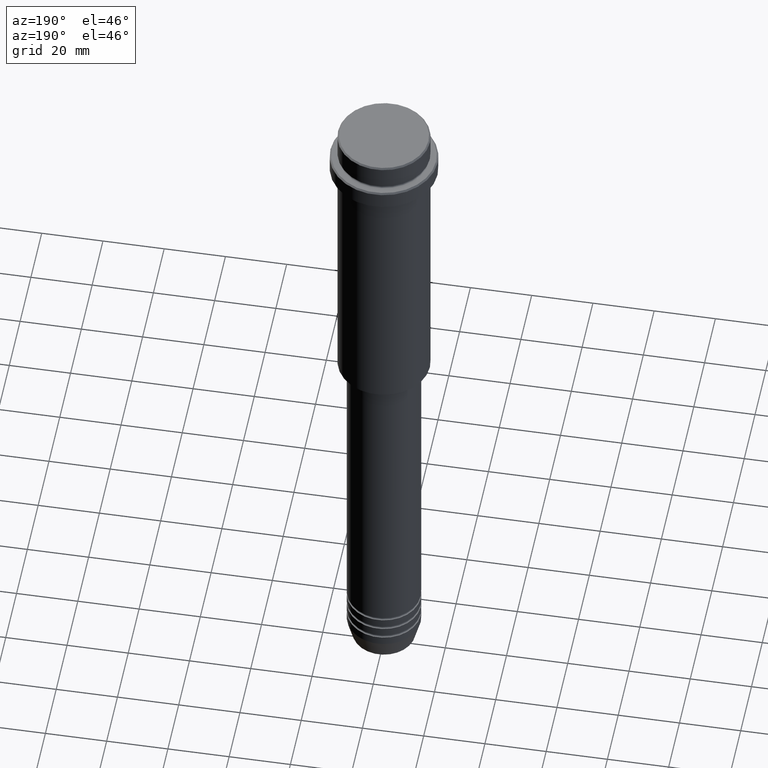
[diagram: clean part render]
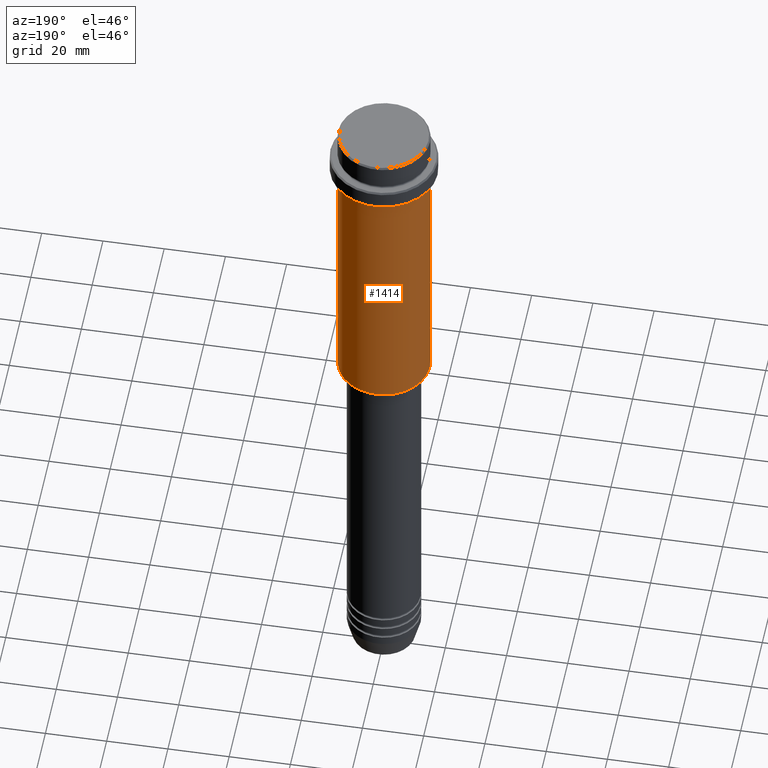
[diagram: same view with one face highlighted and labeled with its STEP entity id]
A machine part, auxiliary view. The second image highlights one B-rep face of the part: STEP entity #1414.
In plain terms, the highlighted cylindrical surface (partial cylindrical patch) has radius 15 mm, axis along (-0, -0, 1).
Its self-contained STEP definition (entity closure, byte-faithful):
#18 = VERTEX_POINT ( 'NONE', #422 ) ;
#80 = CIRCLE ( 'NONE', #1359, 15.00000000000000000 ) ;
#122 = DIRECTION ( 'NONE',  ( -0.000000000000000000, -0.000000000000000000, 1.000000000000000000 ) ) ;
#208 = CARTESIAN_POINT ( 'NONE',  ( 15.00000000000000000, 0.000000000000000000, -104.4999999999999432 ) ) ;
#262 = FACE_OUTER_BOUND ( 'NONE', #579, .T. ) ;
#267 = VECTOR ( 'NONE', #1277, 1000.000000000000000 ) ;
#274 = DIRECTION ( 'NONE',  ( 1.000000000000000000, 0.000000000000000000, 0.000000000000000000 ) ) ;
#327 = EDGE_CURVE ( 'NONE', #1047, #18, #342, .T. ) ;
#340 = CARTESIAN_POINT ( 'NONE',  ( 0.000000000000000000, 0.000000000000000000, -104.4999999999999432 ) ) ;
#342 = LINE ( 'NONE', #782, #1335 ) ;
#422 = CARTESIAN_POINT ( 'NONE',  ( 15.00000000000000178, 0.000000000000000000, -16.00000000000000000 ) ) ;
#489 = CARTESIAN_POINT ( 'NONE',  ( -15.00000000000000000, 1.836970198721029589E-15, -104.4999999999999432 ) ) ;
#579 = EDGE_LOOP ( 'NONE', ( #1345, #739, #1080, #1211 ) ) ;
#619 = CARTESIAN_POINT ( 'NONE',  ( -15.00000000000000000, 1.836970198721029589E-15, 0.000000000000000000 ) ) ;
#687 = DIRECTION ( 'NONE',  ( -1.000000000000000000, 0.000000000000000000, 0.000000000000000000 ) ) ;
#704 = CIRCLE ( 'NONE', #1338, 15.00000000000000178 ) ;
#705 = CYLINDRICAL_SURFACE ( 'NONE', #913, 15.00000000000000000 ) ;
#732 = VERTEX_POINT ( 'NONE', #869 ) ;
#739 = ORIENTED_EDGE ( 'NONE', *, *, #1069, .T. ) ;
#782 = CARTESIAN_POINT ( 'NONE',  ( 15.00000000000000000, 0.000000000000000000, 0.000000000000000000 ) ) ;
#807 = DIRECTION ( 'NONE',  ( -0.000000000000000000, -0.000000000000000000, 1.000000000000000000 ) ) ;
#828 = DIRECTION ( 'NONE',  ( -0.000000000000000000, -0.000000000000000000, 1.000000000000000000 ) ) ;
#857 = EDGE_CURVE ( 'NONE', #1047, #1015, #80, .T. ) ;
#869 = CARTESIAN_POINT ( 'NONE',  ( -15.00000000000000355, 1.836970198721029983E-15, -16.00000000000000000 ) ) ;
#913 = AXIS2_PLACEMENT_3D ( 'NONE', #931, #828, #1247 ) ;
#931 = CARTESIAN_POINT ( 'NONE',  ( 0.000000000000000000, 0.000000000000000000, 0.000000000000000000 ) ) ;
#953 = LINE ( 'NONE', #619, #267 ) ;
#985 = EDGE_CURVE ( 'NONE', #18, #732, #704, .T. ) ;
#1015 = VERTEX_POINT ( 'NONE', #489 ) ;
#1030 = CARTESIAN_POINT ( 'NONE',  ( 0.000000000000000000, 0.000000000000000000, -16.00000000000000000 ) ) ;
#1047 = VERTEX_POINT ( 'NONE', #208 ) ;
#1069 = EDGE_CURVE ( 'NONE', #1015, #732, #953, .T. ) ;
#1080 = ORIENTED_EDGE ( 'NONE', *, *, #985, .F. ) ;
#1101 = DIRECTION ( 'NONE',  ( -0.000000000000000000, -0.000000000000000000, 1.000000000000000000 ) ) ;
#1211 = ORIENTED_EDGE ( 'NONE', *, *, #327, .F. ) ;
#1247 = DIRECTION ( 'NONE',  ( 1.000000000000000000, 0.000000000000000000, 0.000000000000000000 ) ) ;
#1277 = DIRECTION ( 'NONE',  ( -0.000000000000000000, -0.000000000000000000, 1.000000000000000000 ) ) ;
#1335 = VECTOR ( 'NONE', #1101, 1000.000000000000000 ) ;
#1338 = AXIS2_PLACEMENT_3D ( 'NONE', #1030, #807, #274 ) ;
#1345 = ORIENTED_EDGE ( 'NONE', *, *, #857, .T. ) ;
#1359 = AXIS2_PLACEMENT_3D ( 'NONE', #340, #122, #687 ) ;
#1414 = ADVANCED_FACE ( 'NONE', ( #262 ), #705, .T. ) ;